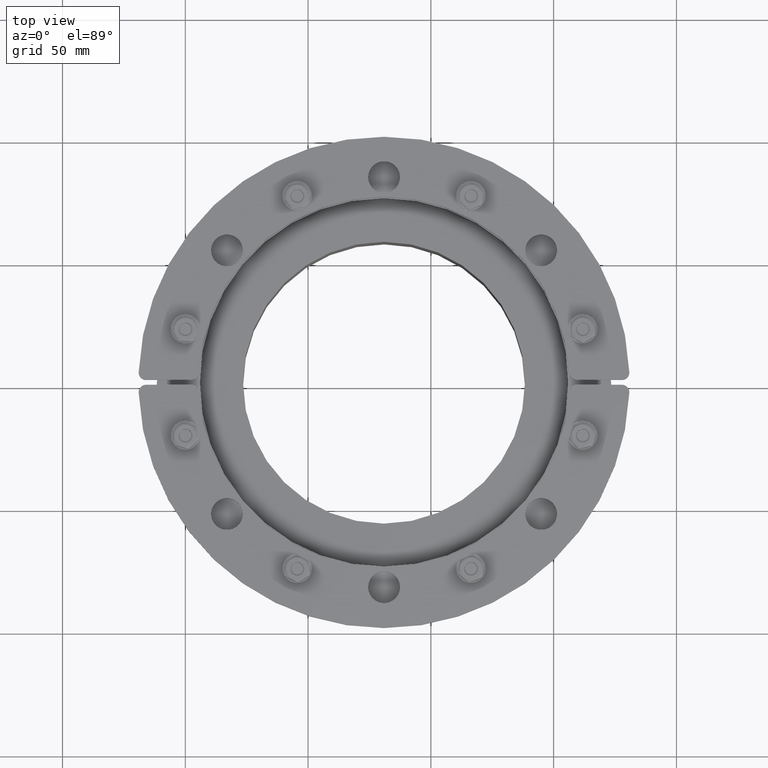
[diagram: clean part render]
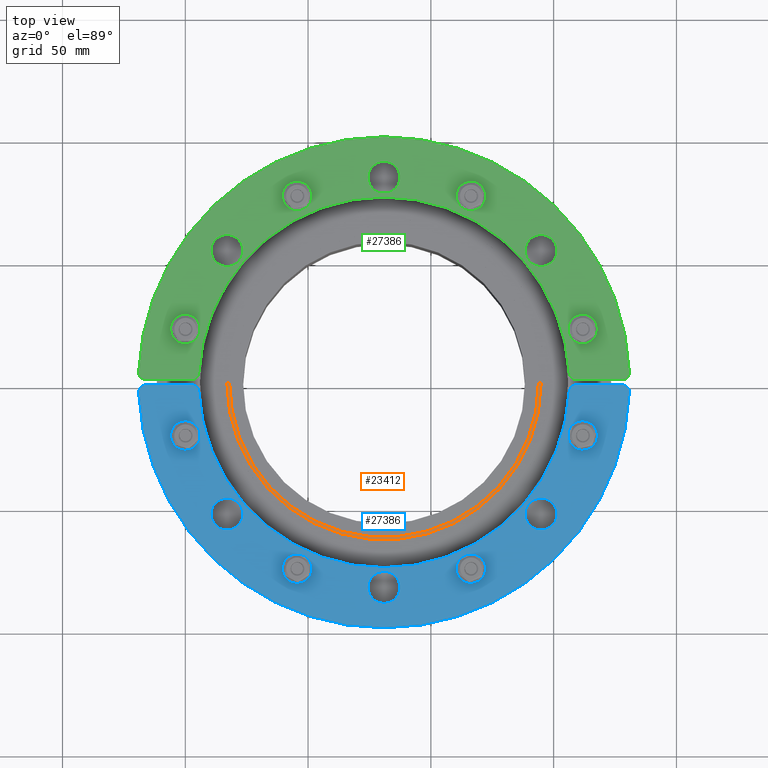
[diagram: same view with three faces highlighted in distinct colors, each labeled with its STEP entity id]
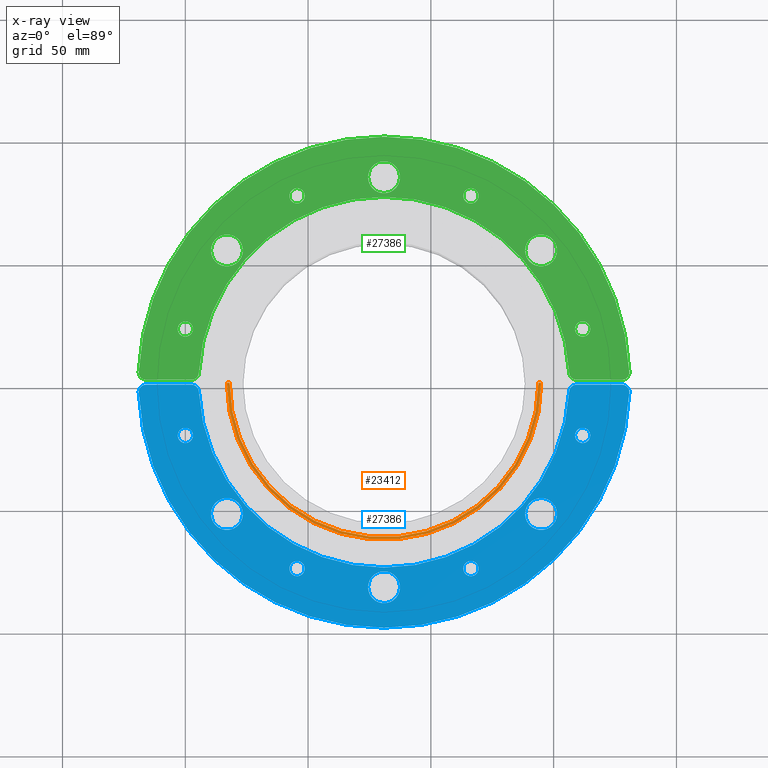
[diagram: x-ray of the same camera — body ghosted, the three highlighted faces saturated]
A machine part, top view with three faces highlighted in distinct colors.
The next image is the same camera in x-ray (body ghosted, the three faces saturated) — at least one of them is partly hidden behind the body in this view.
Their STEP definitions:

[orange] entity #23412 — the highlighted planar face has unit normal (0, -0, -1).
#23266=CARTESIAN_POINT('',(64.0,0.0,0.0));
#23267=VERTEX_POINT('',#23266);
#23268=CARTESIAN_POINT('',(-64.0,0.0,0.0));
#23269=VERTEX_POINT('',#23268);
#23270=CARTESIAN_POINT('',(0.0,0.0,0.0));
#23271=DIRECTION('',(0.0,0.0,1.0));
#23272=DIRECTION('',(1.0,0.0,0.0));
#23273=AXIS2_PLACEMENT_3D('',#23270,#23271,#23272);
#23274=CIRCLE('',#23273,64.0);
#23275=EDGE_CURVE('',#23267,#23269,#23274,.T.);
#23308=CARTESIAN_POINT('',(62.899999999999999,0.0,0.0));
#23309=VERTEX_POINT('',#23308);
#23310=CARTESIAN_POINT('',(62.900000000000006,0.0,0.0));
#23311=DIRECTION('',(1.0,0.0,0.0));
#23312=VECTOR('',#23311,1.099999999999994);
#23313=LINE('',#23310,#23312);
#23314=EDGE_CURVE('',#23309,#23267,#23313,.T.);
#23339=CARTESIAN_POINT('',(-62.899999999999999,0.0,0.0));
#23340=VERTEX_POINT('',#23339);
#23341=CARTESIAN_POINT('',(0.0,0.0,0.0));
#23342=DIRECTION('',(0.0,0.0,-1.0));
#23343=DIRECTION('',(-1.0,0.0,0.0));
#23344=AXIS2_PLACEMENT_3D('',#23341,#23342,#23343);
#23345=CIRCLE('',#23344,62.899999999999999);
#23346=EDGE_CURVE('',#23340,#23309,#23345,.T.);
#23372=CARTESIAN_POINT('',(-64.0,0.0,0.0));
#23373=DIRECTION('',(1.0,0.0,0.0));
#23374=VECTOR('',#23373,1.100000000000001);
#23375=LINE('',#23372,#23374);
#23376=EDGE_CURVE('',#23269,#23340,#23375,.T.);
#23401=CARTESIAN_POINT('',(1.308412E-016,40.10183219177658,0.0));
#23402=DIRECTION('',(0.0,0.0,1.0));
#23403=DIRECTION('',(1.0,0.0,0.0));
#23404=AXIS2_PLACEMENT_3D('',#23401,#23402,#23403);
#23405=PLANE('',#23404);
#23406=ORIENTED_EDGE('',*,*,#23376,.F.);
#23407=ORIENTED_EDGE('',*,*,#23275,.F.);
#23408=ORIENTED_EDGE('',*,*,#23314,.F.);
#23409=ORIENTED_EDGE('',*,*,#23346,.F.);
#23410=EDGE_LOOP('',(#23406,#23407,#23408,#23409));
#23411=FACE_OUTER_BOUND('',#23410,.T.);
#23412=ADVANCED_FACE('',(#23411),#23405,.F.);

[blue] entity #27386 — the highlighted planar face has unit normal (-0, -0, 1).
#27131=CARTESIAN_POINT('',(6.499999999999998,83.500000000000014,0.0));
#27132=VERTEX_POINT('',#27131);
#27133=CARTESIAN_POINT('',(-2.185478E-015,83.500000000000014,0.0));
#27134=DIRECTION('',(0.0,0.0,-1.0));
#27135=DIRECTION('',(-1.0,0.0,0.0));
#27136=AXIS2_PLACEMENT_3D('',#27133,#27134,#27135);
#27137=CIRCLE('',#27136,6.5);
#27138=EDGE_CURVE('',#27132,#27132,#27137,.T.);
#27159=CARTESIAN_POINT('',(-57.464711000434683,53.672765408826024,0.0));
#27160=VERTEX_POINT('',#27159);
#27161=CARTESIAN_POINT('',(-63.96471100043469,53.672765408826024,0.0));
#27162=DIRECTION('',(0.0,0.0,-1.0));
#27163=DIRECTION('',(-1.0,0.0,0.0));
#27164=AXIS2_PLACEMENT_3D('',#27161,#27162,#27163);
#27165=CIRCLE('',#27164,6.5);
#27166=EDGE_CURVE('',#27160,#27160,#27165,.T.);
#27187=CARTESIAN_POINT('',(70.464711000434662,53.672765408826052,0.0));
#27188=VERTEX_POINT('',#27187);
#27189=CARTESIAN_POINT('',(63.964711000434662,53.672765408826052,0.0));
#27190=DIRECTION('',(0.0,0.0,-1.0));
#27191=DIRECTION('',(-1.0,0.0,0.0));
#27192=AXIS2_PLACEMENT_3D('',#27189,#27190,#27191);
#27193=CIRCLE('',#27192,6.5);
#27194=EDGE_CURVE('',#27188,#27188,#27193,.T.);
#27215=CARTESIAN_POINT('',(-96.917490681507005,0.999999999999988,0.0));
#27216=VERTEX_POINT('',#27215);
#27223=CARTESIAN_POINT('',(-99.914938846914453,4.123711340206175,0.0));
#27224=VERTEX_POINT('',#27223);
#27225=CARTESIAN_POINT('',(-96.917490681507005,3.999999999999989,0.0));
#27226=DIRECTION('',(0.0,0.0,-1.0));
#27227=DIRECTION('',(-0.721539019527727,-0.692373774271503,0.0));
#27228=AXIS2_PLACEMENT_3D('',#27225,#27226,#27227);
#27229=CIRCLE('',#27228,3.0);
#27230=EDGE_CURVE('',#27216,#27224,#27229,.T.);
#27247=CARTESIAN_POINT('',(99.914938846914453,4.12371134020617,0.0));
#27248=VERTEX_POINT('',#27247);
#27249=CARTESIAN_POINT('',(0.0,0.0,0.0));
#27250=DIRECTION('',(0.0,0.0,-1.0));
#27251=DIRECTION('',(-0.999949998749938,-0.01,0.0));
#27252=AXIS2_PLACEMENT_3D('',#27249,#27250,#27251);
#27253=CIRCLE('',#27252,100.0);
#27254=EDGE_CURVE('',#27224,#27248,#27253,.T.);
#27274=CARTESIAN_POINT('',(6.668364E-014,51.354258588604424,0.0));
#27275=DIRECTION('',(0.0,0.0,1.0));
#27276=DIRECTION('',(1.0,0.0,0.0));
#27277=AXIS2_PLACEMENT_3D('',#27274,#27275,#27276);
#27278=PLANE('',#27277);
#27279=ORIENTED_EDGE('',*,*,#27230,.F.);
#27280=CARTESIAN_POINT('',(-78.398022934255181,0.99999999999999,0.0));
#27281=VERTEX_POINT('',#27280);
#27282=CARTESIAN_POINT('',(-78.398022934255181,0.99999999999999,0.0));
#27283=DIRECTION('',(-1.0,0.0,0.0));
#27284=VECTOR('',#27283,18.519467747251824);
#27285=LINE('',#27282,#27284);
#27286=EDGE_CURVE('',#27281,#27216,#27285,.T.);
#27287=ORIENTED_EDGE('',*,*,#27286,.F.);
#27288=CARTESIAN_POINT('',(-75.401920146958815,3.84713375796176,0.0));
#27289=VERTEX_POINT('',#27288);
#27290=CARTESIAN_POINT('',(-78.398022934255181,3.999999999999974,0.0));
#27291=DIRECTION('',(0.0,0.0,-1.0));
#27292=DIRECTION('',(0.688855785338001,-0.724898411507686,0.0));
#27293=AXIS2_PLACEMENT_3D('',#27290,#27291,#27292);
#27294=CIRCLE('',#27293,3.0);
#27295=EDGE_CURVE('',#27289,#27281,#27294,.T.);
#27296=ORIENTED_EDGE('',*,*,#27295,.F.);
#27297=CARTESIAN_POINT('',(75.401920146958801,3.847133757961786,0.0));
#27298=VERTEX_POINT('',#27297);
#27299=CARTESIAN_POINT('',(0.0,0.0,0.0));
#27300=DIRECTION('',(0.0,0.0,1.0));
#27301=DIRECTION('',(0.999912280701586,0.013245033112583,0.0));
#27302=AXIS2_PLACEMENT_3D('',#27299,#27300,#27301);
#27303=CIRCLE('',#27302,75.500000000000014);
#27304=EDGE_CURVE('',#27298,#27289,#27303,.T.);
#27305=ORIENTED_EDGE('',*,*,#27304,.F.);
#27306=CARTESIAN_POINT('',(78.398022934255181,1.000000000000002,0.0));
#27307=VERTEX_POINT('',#27306);
#27308=CARTESIAN_POINT('',(78.398022934255181,4.000000000000003,0.0));
#27309=DIRECTION('',(0.0,0.0,-1.0));
#27310=DIRECTION('',(-0.688855785337999,-0.724898411507688,0.0));
#27311=AXIS2_PLACEMENT_3D('',#27308,#27309,#27310);
#27312=CIRCLE('',#27311,3.0);
#27313=EDGE_CURVE('',#27307,#27298,#27312,.T.);
#27314=ORIENTED_EDGE('',*,*,#27313,.F.);
#27315=CARTESIAN_POINT('',(96.917490681507005,1.000000000000002,0.0));
#27316=VERTEX_POINT('',#27315);
#27317=CARTESIAN_POINT('',(96.917490681507019,1.000000000000002,0.0));
#27318=DIRECTION('',(-1.0,0.0,0.0));
#27319=VECTOR('',#27318,18.519467747251838);
#27320=LINE('',#27317,#27319);
#27321=EDGE_CURVE('',#27316,#27307,#27320,.T.);
#27322=ORIENTED_EDGE('',*,*,#27321,.F.);
#27323=CARTESIAN_POINT('',(96.917490681507005,3.999999999999984,0.0));
#27324=DIRECTION('',(0.0,0.0,-1.0));
#27325=DIRECTION('',(0.721539019527729,-0.692373774271501,0.0));
#27326=AXIS2_PLACEMENT_3D('',#27323,#27324,#27325);
#27327=CIRCLE('',#27326,3.0);
#27328=EDGE_CURVE('',#27248,#27316,#27327,.T.);
#27329=ORIENTED_EDGE('',*,*,#27328,.F.);
#27330=ORIENTED_EDGE('',*,*,#27254,.F.);
#27331=EDGE_LOOP('',(#27279,#27287,#27296,#27305,#27314,#27322,#27329,#27330));
#27332=FACE_OUTER_BOUND('',#27331,.T.);
#27333=ORIENTED_EDGE('',*,*,#27138,.T.);
#27334=EDGE_LOOP('',(#27333));
#27335=FACE_BOUND('',#27334,.T.);
#27336=ORIENTED_EDGE('',*,*,#27166,.T.);
#27337=EDGE_LOOP('',(#27336));
#27338=FACE_BOUND('',#27337,.T.);
#27339=ORIENTED_EDGE('',*,*,#27194,.T.);
#27340=EDGE_LOOP('',(#27339));
#27341=FACE_BOUND('',#27340,.T.);
#27342=CARTESIAN_POINT('',(38.494279420783577,75.903277164319448,0.0));
#27343=VERTEX_POINT('',#27342);
#27344=CARTESIAN_POINT('',(35.394279420783576,75.903277164319448,0.0));
#27345=DIRECTION('',(0.0,0.0,-1.0));
#27346=DIRECTION('',(-1.0,0.0,0.0));
#27347=AXIS2_PLACEMENT_3D('',#27344,#27345,#27346);
#27348=CIRCLE('',#27347,3.100000000000001);
#27349=EDGE_CURVE('',#27343,#27343,#27348,.T.);
#27350=ORIENTED_EDGE('',*,*,#27349,.T.);
#27351=EDGE_LOOP('',(#27350));
#27352=FACE_BOUND('',#27351,.T.);
#27353=CARTESIAN_POINT('',(83.99628795170949,21.676095027336117,0.0));
#27354=VERTEX_POINT('',#27353);
#27355=CARTESIAN_POINT('',(80.896287951709496,21.676095027336117,0.0));
#27356=DIRECTION('',(0.0,0.0,-1.0));
#27357=DIRECTION('',(-1.0,0.0,0.0));
#27358=AXIS2_PLACEMENT_3D('',#27355,#27356,#27357);
#27359=CIRCLE('',#27358,3.100000000000001);
#27360=EDGE_CURVE('',#27354,#27354,#27359,.T.);
#27361=ORIENTED_EDGE('',*,*,#27360,.T.);
#27362=EDGE_LOOP('',(#27361));
#27363=FACE_BOUND('',#27362,.T.);
#27364=CARTESIAN_POINT('',(-77.796287951709488,21.676095027336125,0.0));
#27365=VERTEX_POINT('',#27364);
#27366=CARTESIAN_POINT('',(-80.896287951709496,21.676095027336125,0.0));
#27367=DIRECTION('',(0.0,0.0,-1.0));
#27368=DIRECTION('',(-1.0,0.0,0.0));
#27369=AXIS2_PLACEMENT_3D('',#27366,#27367,#27368);
#27370=CIRCLE('',#27369,3.100000000000001);
#27371=EDGE_CURVE('',#27365,#27365,#27370,.T.);
#27372=ORIENTED_EDGE('',*,*,#27371,.T.);
#27373=EDGE_LOOP('',(#27372));
#27374=FACE_BOUND('',#27373,.T.);
#27375=CARTESIAN_POINT('',(-32.294279420783582,75.903277164319448,0.0));
#27376=VERTEX_POINT('',#27375);
#27377=CARTESIAN_POINT('',(-35.394279420783576,75.903277164319448,0.0));
#27378=DIRECTION('',(0.0,0.0,-1.0));
#27379=DIRECTION('',(-1.0,0.0,0.0));
#27380=AXIS2_PLACEMENT_3D('',#27377,#27378,#27379);
#27381=CIRCLE('',#27380,3.100000000000001);
#27382=EDGE_CURVE('',#27376,#27376,#27381,.T.);
#27383=ORIENTED_EDGE('',*,*,#27382,.T.);
#27384=EDGE_LOOP('',(#27383));
#27385=FACE_BOUND('',#27384,.T.);
#27386=ADVANCED_FACE('',(#27332,#27335,#27338,#27341,#27352,#27363,#27374,#27385),#27278,.T.);

[green] entity #27386 — the highlighted planar face has unit normal (0, 0, 1).
#27131=CARTESIAN_POINT('',(6.499999999999998,83.500000000000014,0.0));
#27132=VERTEX_POINT('',#27131);
#27133=CARTESIAN_POINT('',(-2.185478E-015,83.500000000000014,0.0));
#27134=DIRECTION('',(0.0,0.0,-1.0));
#27135=DIRECTION('',(-1.0,0.0,0.0));
#27136=AXIS2_PLACEMENT_3D('',#27133,#27134,#27135);
#27137=CIRCLE('',#27136,6.5);
#27138=EDGE_CURVE('',#27132,#27132,#27137,.T.);
#27159=CARTESIAN_POINT('',(-57.464711000434683,53.672765408826024,0.0));
#27160=VERTEX_POINT('',#27159);
#27161=CARTESIAN_POINT('',(-63.96471100043469,53.672765408826024,0.0));
#27162=DIRECTION('',(0.0,0.0,-1.0));
#27163=DIRECTION('',(-1.0,0.0,0.0));
#27164=AXIS2_PLACEMENT_3D('',#27161,#27162,#27163);
#27165=CIRCLE('',#27164,6.5);
#27166=EDGE_CURVE('',#27160,#27160,#27165,.T.);
#27187=CARTESIAN_POINT('',(70.464711000434662,53.672765408826052,0.0));
#27188=VERTEX_POINT('',#27187);
#27189=CARTESIAN_POINT('',(63.964711000434662,53.672765408826052,0.0));
#27190=DIRECTION('',(0.0,0.0,-1.0));
#27191=DIRECTION('',(-1.0,0.0,0.0));
#27192=AXIS2_PLACEMENT_3D('',#27189,#27190,#27191);
#27193=CIRCLE('',#27192,6.5);
#27194=EDGE_CURVE('',#27188,#27188,#27193,.T.);
#27215=CARTESIAN_POINT('',(-96.917490681507005,0.999999999999988,0.0));
#27216=VERTEX_POINT('',#27215);
#27223=CARTESIAN_POINT('',(-99.914938846914453,4.123711340206175,0.0));
#27224=VERTEX_POINT('',#27223);
#27225=CARTESIAN_POINT('',(-96.917490681507005,3.999999999999989,0.0));
#27226=DIRECTION('',(0.0,0.0,-1.0));
#27227=DIRECTION('',(-0.721539019527727,-0.692373774271503,0.0));
#27228=AXIS2_PLACEMENT_3D('',#27225,#27226,#27227);
#27229=CIRCLE('',#27228,3.0);
#27230=EDGE_CURVE('',#27216,#27224,#27229,.T.);
#27247=CARTESIAN_POINT('',(99.914938846914453,4.12371134020617,0.0));
#27248=VERTEX_POINT('',#27247);
#27249=CARTESIAN_POINT('',(0.0,0.0,0.0));
#27250=DIRECTION('',(0.0,0.0,-1.0));
#27251=DIRECTION('',(-0.999949998749938,-0.01,0.0));
#27252=AXIS2_PLACEMENT_3D('',#27249,#27250,#27251);
#27253=CIRCLE('',#27252,100.0);
#27254=EDGE_CURVE('',#27224,#27248,#27253,.T.);
#27274=CARTESIAN_POINT('',(6.668364E-014,51.354258588604424,0.0));
#27275=DIRECTION('',(0.0,0.0,1.0));
#27276=DIRECTION('',(1.0,0.0,0.0));
#27277=AXIS2_PLACEMENT_3D('',#27274,#27275,#27276);
#27278=PLANE('',#27277);
#27279=ORIENTED_EDGE('',*,*,#27230,.F.);
#27280=CARTESIAN_POINT('',(-78.398022934255181,0.99999999999999,0.0));
#27281=VERTEX_POINT('',#27280);
#27282=CARTESIAN_POINT('',(-78.398022934255181,0.99999999999999,0.0));
#27283=DIRECTION('',(-1.0,0.0,0.0));
#27284=VECTOR('',#27283,18.519467747251824);
#27285=LINE('',#27282,#27284);
#27286=EDGE_CURVE('',#27281,#27216,#27285,.T.);
#27287=ORIENTED_EDGE('',*,*,#27286,.F.);
#27288=CARTESIAN_POINT('',(-75.401920146958815,3.84713375796176,0.0));
#27289=VERTEX_POINT('',#27288);
#27290=CARTESIAN_POINT('',(-78.398022934255181,3.999999999999974,0.0));
#27291=DIRECTION('',(0.0,0.0,-1.0));
#27292=DIRECTION('',(0.688855785338001,-0.724898411507686,0.0));
#27293=AXIS2_PLACEMENT_3D('',#27290,#27291,#27292);
#27294=CIRCLE('',#27293,3.0);
#27295=EDGE_CURVE('',#27289,#27281,#27294,.T.);
#27296=ORIENTED_EDGE('',*,*,#27295,.F.);
#27297=CARTESIAN_POINT('',(75.401920146958801,3.847133757961786,0.0));
#27298=VERTEX_POINT('',#27297);
#27299=CARTESIAN_POINT('',(0.0,0.0,0.0));
#27300=DIRECTION('',(0.0,0.0,1.0));
#27301=DIRECTION('',(0.999912280701586,0.013245033112583,0.0));
#27302=AXIS2_PLACEMENT_3D('',#27299,#27300,#27301);
#27303=CIRCLE('',#27302,75.500000000000014);
#27304=EDGE_CURVE('',#27298,#27289,#27303,.T.);
#27305=ORIENTED_EDGE('',*,*,#27304,.F.);
#27306=CARTESIAN_POINT('',(78.398022934255181,1.000000000000002,0.0));
#27307=VERTEX_POINT('',#27306);
#27308=CARTESIAN_POINT('',(78.398022934255181,4.000000000000003,0.0));
#27309=DIRECTION('',(0.0,0.0,-1.0));
#27310=DIRECTION('',(-0.688855785337999,-0.724898411507688,0.0));
#27311=AXIS2_PLACEMENT_3D('',#27308,#27309,#27310);
#27312=CIRCLE('',#27311,3.0);
#27313=EDGE_CURVE('',#27307,#27298,#27312,.T.);
#27314=ORIENTED_EDGE('',*,*,#27313,.F.);
#27315=CARTESIAN_POINT('',(96.917490681507005,1.000000000000002,0.0));
#27316=VERTEX_POINT('',#27315);
#27317=CARTESIAN_POINT('',(96.917490681507019,1.000000000000002,0.0));
#27318=DIRECTION('',(-1.0,0.0,0.0));
#27319=VECTOR('',#27318,18.519467747251838);
#27320=LINE('',#27317,#27319);
#27321=EDGE_CURVE('',#27316,#27307,#27320,.T.);
#27322=ORIENTED_EDGE('',*,*,#27321,.F.);
#27323=CARTESIAN_POINT('',(96.917490681507005,3.999999999999984,0.0));
#27324=DIRECTION('',(0.0,0.0,-1.0));
#27325=DIRECTION('',(0.721539019527729,-0.692373774271501,0.0));
#27326=AXIS2_PLACEMENT_3D('',#27323,#27324,#27325);
#27327=CIRCLE('',#27326,3.0);
#27328=EDGE_CURVE('',#27248,#27316,#27327,.T.);
#27329=ORIENTED_EDGE('',*,*,#27328,.F.);
#27330=ORIENTED_EDGE('',*,*,#27254,.F.);
#27331=EDGE_LOOP('',(#27279,#27287,#27296,#27305,#27314,#27322,#27329,#27330));
#27332=FACE_OUTER_BOUND('',#27331,.T.);
#27333=ORIENTED_EDGE('',*,*,#27138,.T.);
#27334=EDGE_LOOP('',(#27333));
#27335=FACE_BOUND('',#27334,.T.);
#27336=ORIENTED_EDGE('',*,*,#27166,.T.);
#27337=EDGE_LOOP('',(#27336));
#27338=FACE_BOUND('',#27337,.T.);
#27339=ORIENTED_EDGE('',*,*,#27194,.T.);
#27340=EDGE_LOOP('',(#27339));
#27341=FACE_BOUND('',#27340,.T.);
#27342=CARTESIAN_POINT('',(38.494279420783577,75.903277164319448,0.0));
#27343=VERTEX_POINT('',#27342);
#27344=CARTESIAN_POINT('',(35.394279420783576,75.903277164319448,0.0));
#27345=DIRECTION('',(0.0,0.0,-1.0));
#27346=DIRECTION('',(-1.0,0.0,0.0));
#27347=AXIS2_PLACEMENT_3D('',#27344,#27345,#27346);
#27348=CIRCLE('',#27347,3.100000000000001);
#27349=EDGE_CURVE('',#27343,#27343,#27348,.T.);
#27350=ORIENTED_EDGE('',*,*,#27349,.T.);
#27351=EDGE_LOOP('',(#27350));
#27352=FACE_BOUND('',#27351,.T.);
#27353=CARTESIAN_POINT('',(83.99628795170949,21.676095027336117,0.0));
#27354=VERTEX_POINT('',#27353);
#27355=CARTESIAN_POINT('',(80.896287951709496,21.676095027336117,0.0));
#27356=DIRECTION('',(0.0,0.0,-1.0));
#27357=DIRECTION('',(-1.0,0.0,0.0));
#27358=AXIS2_PLACEMENT_3D('',#27355,#27356,#27357);
#27359=CIRCLE('',#27358,3.100000000000001);
#27360=EDGE_CURVE('',#27354,#27354,#27359,.T.);
#27361=ORIENTED_EDGE('',*,*,#27360,.T.);
#27362=EDGE_LOOP('',(#27361));
#27363=FACE_BOUND('',#27362,.T.);
#27364=CARTESIAN_POINT('',(-77.796287951709488,21.676095027336125,0.0));
#27365=VERTEX_POINT('',#27364);
#27366=CARTESIAN_POINT('',(-80.896287951709496,21.676095027336125,0.0));
#27367=DIRECTION('',(0.0,0.0,-1.0));
#27368=DIRECTION('',(-1.0,0.0,0.0));
#27369=AXIS2_PLACEMENT_3D('',#27366,#27367,#27368);
#27370=CIRCLE('',#27369,3.100000000000001);
#27371=EDGE_CURVE('',#27365,#27365,#27370,.T.);
#27372=ORIENTED_EDGE('',*,*,#27371,.T.);
#27373=EDGE_LOOP('',(#27372));
#27374=FACE_BOUND('',#27373,.T.);
#27375=CARTESIAN_POINT('',(-32.294279420783582,75.903277164319448,0.0));
#27376=VERTEX_POINT('',#27375);
#27377=CARTESIAN_POINT('',(-35.394279420783576,75.903277164319448,0.0));
#27378=DIRECTION('',(0.0,0.0,-1.0));
#27379=DIRECTION('',(-1.0,0.0,0.0));
#27380=AXIS2_PLACEMENT_3D('',#27377,#27378,#27379);
#27381=CIRCLE('',#27380,3.100000000000001);
#27382=EDGE_CURVE('',#27376,#27376,#27381,.T.);
#27383=ORIENTED_EDGE('',*,*,#27382,.T.);
#27384=EDGE_LOOP('',(#27383));
#27385=FACE_BOUND('',#27384,.T.);
#27386=ADVANCED_FACE('',(#27332,#27335,#27338,#27341,#27352,#27363,#27374,#27385),#27278,.T.);